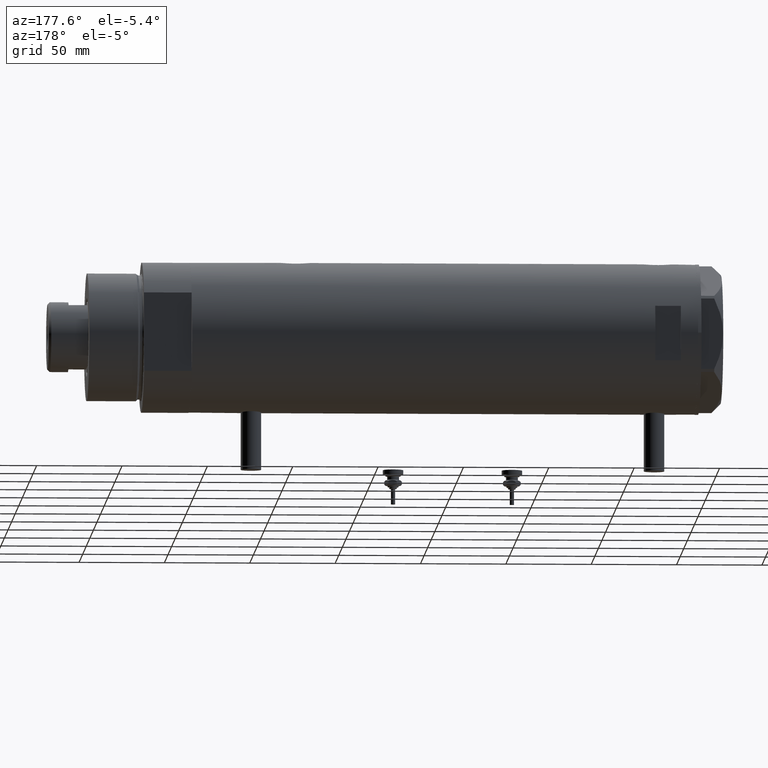
[diagram: clean part render]
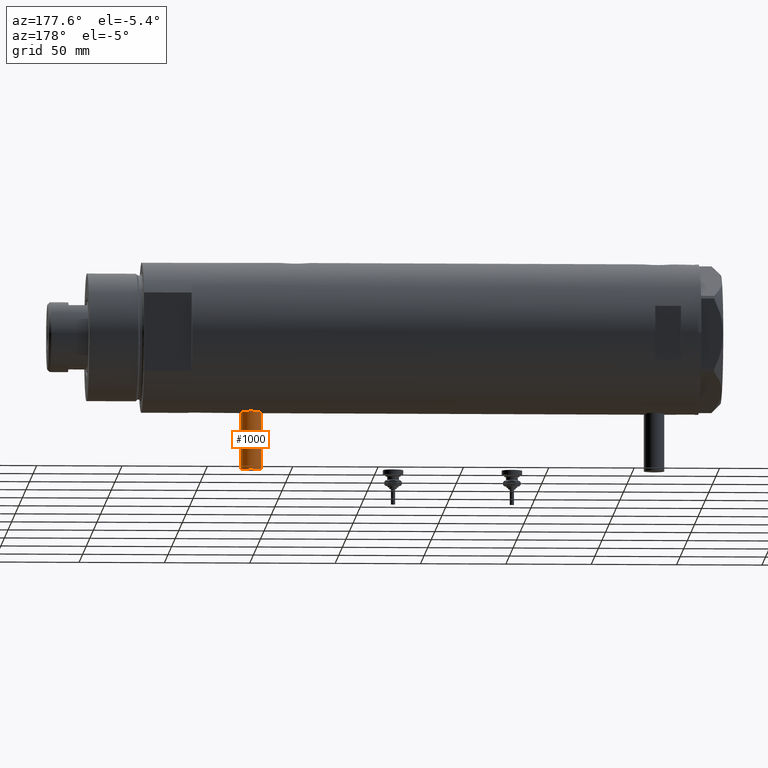
[diagram: same view with one face highlighted and labeled with its STEP entity id]
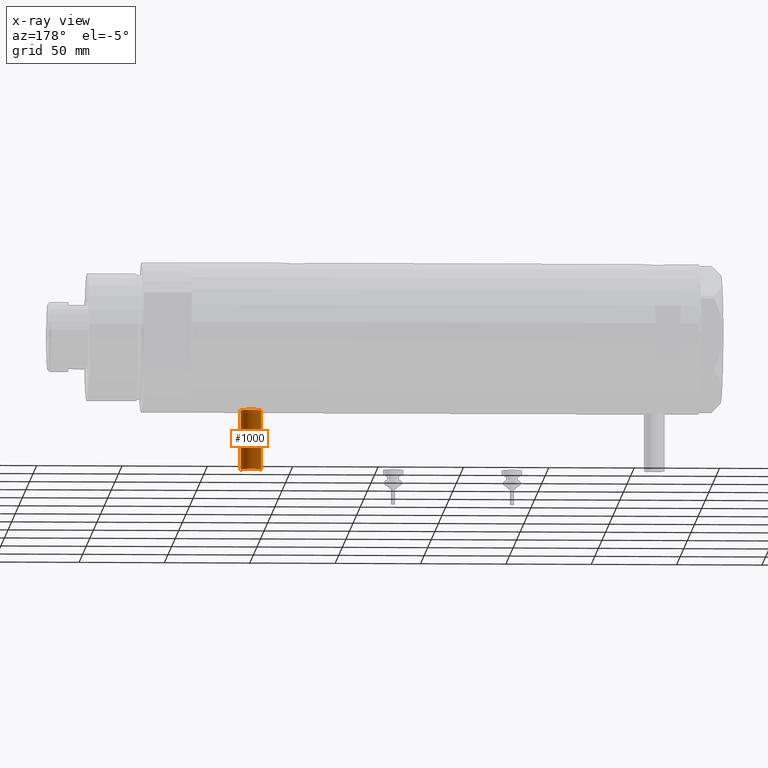
[diagram: x-ray of the same camera — body ghosted, the highlighted face saturated]
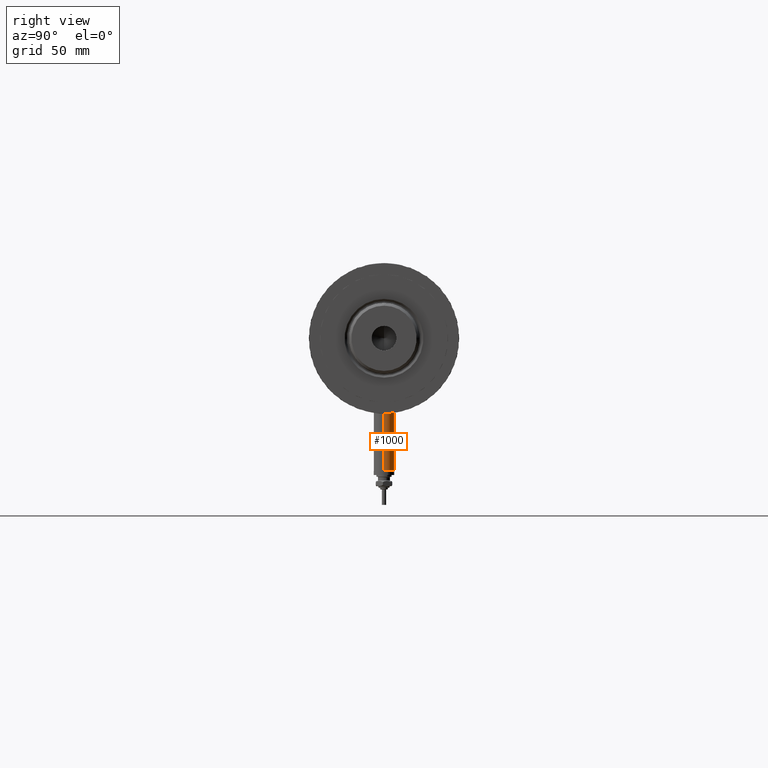
[diagram: same view with one face highlighted and labeled with its STEP entity id]
A machine part, auxiliary view. The second image highlights one B-rep face of the part: STEP entity #1000.
The next image is the same camera in x-ray: the body ghosted, the highlighted face saturated — about 0% of this face is hidden behind the body in this view.
A second angle (right view) of the same face is appended — the face is thin or edge-on in the first view.
In plain terms, the highlighted cylindrical surface (edge-blend (fillet) strip) has radius 6 mm, axis along (0, 0, 1).
Its self-contained STEP definition (entity closure, byte-faithful):
#200 = CARTESIAN_POINT ( 'NONE',  ( -42.79999999999999716, 0.000000000000000000, -117.9000000000000057 ) ) ;
#293 = EDGE_CURVE ( 'NONE', #4551, #1019, #4385, .T. ) ;
#322 = CARTESIAN_POINT ( 'NONE',  ( -77.50000000000000000, 7.347880794884119736E-16, -105.8999999999999915 ) ) ;
#390 = ORIENTED_EDGE ( 'NONE', *, *, #5247, .T. ) ;
#454 = CIRCLE ( 'NONE', #4207, 6.000000000000005329 ) ;
#470 = CARTESIAN_POINT ( 'NONE',  ( -42.79999999999999716, 0.000000000000000000, -111.9000000000000057 ) ) ;
#489 = CARTESIAN_POINT ( 'NONE',  ( -42.79999999999999716, 7.347880794884119736E-16, -105.8999999999999915 ) ) ;
#510 = EDGE_LOOP ( 'NONE', ( #2095, #1900, #390, #5127 ) ) ;
#638 = VECTOR ( 'NONE', #3099, 1000.000000000000000 ) ;
#727 = CARTESIAN_POINT ( 'NONE',  ( -77.50000000000000000, 0.000000000000000000, -111.9000000000000057 ) ) ;
#1000 = ADVANCED_FACE ( 'NONE', ( #5350 ), #1707, .T. ) ;
#1019 = VERTEX_POINT ( 'NONE', #1095 ) ;
#1095 = CARTESIAN_POINT ( 'NONE',  ( -77.50000000000000000, 0.000000000000000000, -117.9000000000000057 ) ) ;
#1138 = VERTEX_POINT ( 'NONE', #489 ) ;
#1151 = DIRECTION ( 'NONE',  ( 1.000000000000000000, -0.000000000000000000, -0.000000000000000000 ) ) ;
#1246 = DIRECTION ( 'NONE',  ( 0.000000000000000000, 0.000000000000000000, 1.000000000000000000 ) ) ;
#1277 = AXIS2_PLACEMENT_3D ( 'NONE', #727, #5000, #2502 ) ;
#1707 = CYLINDRICAL_SURFACE ( 'NONE', #1932, 6.000000000000005329 ) ;
#1900 = ORIENTED_EDGE ( 'NONE', *, *, #4063, .T. ) ;
#1932 = AXIS2_PLACEMENT_3D ( 'NONE', #2910, #1151, #5748 ) ;
#2071 = DIRECTION ( 'NONE',  ( 1.000000000000000000, -0.000000000000000000, -0.000000000000000000 ) ) ;
#2094 = VERTEX_POINT ( 'NONE', #200 ) ;
#2095 = ORIENTED_EDGE ( 'NONE', *, *, #293, .F. ) ;
#2502 = DIRECTION ( 'NONE',  ( 0.000000000000000000, 0.000000000000000000, 1.000000000000000000 ) ) ;
#2659 = LINE ( 'NONE', #3537, #3893 ) ;
#2697 = CARTESIAN_POINT ( 'NONE',  ( -77.50000000000000000, 7.347880794884122694E-16, -105.8999999999999915 ) ) ;
#2910 = CARTESIAN_POINT ( 'NONE',  ( -77.50000000000000000, 0.000000000000000000, -111.9000000000000057 ) ) ;
#3099 = DIRECTION ( 'NONE',  ( 1.000000000000000000, -0.000000000000000000, -0.000000000000000000 ) ) ;
#3179 = LINE ( 'NONE', #2697, #638 ) ;
#3263 = EDGE_CURVE ( 'NONE', #1019, #2094, #2659, .T. ) ;
#3537 = CARTESIAN_POINT ( 'NONE',  ( -77.50000000000000000, 0.000000000000000000, -117.9000000000000057 ) ) ;
#3893 = VECTOR ( 'NONE', #2071, 1000.000000000000000 ) ;
#3941 = DIRECTION ( 'NONE',  ( -1.000000000000000000, 0.000000000000000000, 0.000000000000000000 ) ) ;
#4063 = EDGE_CURVE ( 'NONE', #4551, #1138, #3179, .T. ) ;
#4207 = AXIS2_PLACEMENT_3D ( 'NONE', #470, #3941, #1246 ) ;
#4385 = CIRCLE ( 'NONE', #1277, 6.000000000000005329 ) ;
#4551 = VERTEX_POINT ( 'NONE', #322 ) ;
#5000 = DIRECTION ( 'NONE',  ( -1.000000000000000000, 0.000000000000000000, 0.000000000000000000 ) ) ;
#5127 = ORIENTED_EDGE ( 'NONE', *, *, #3263, .F. ) ;
#5247 = EDGE_CURVE ( 'NONE', #1138, #2094, #454, .T. ) ;
#5350 = FACE_OUTER_BOUND ( 'NONE', #510, .T. ) ;
#5748 = DIRECTION ( 'NONE',  ( 0.000000000000000000, 0.000000000000000000, -1.000000000000000000 ) ) ;